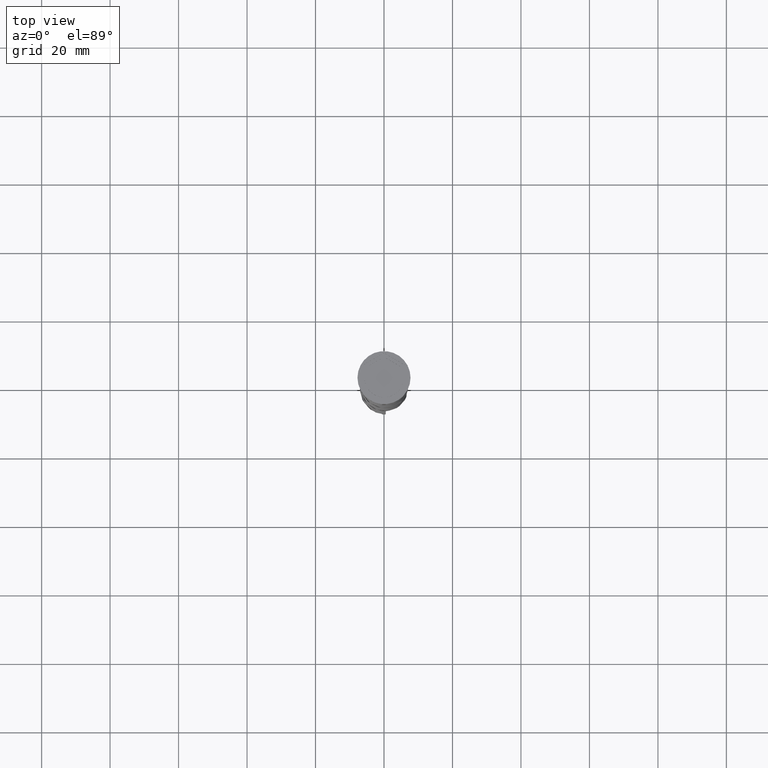
[diagram: clean part render]
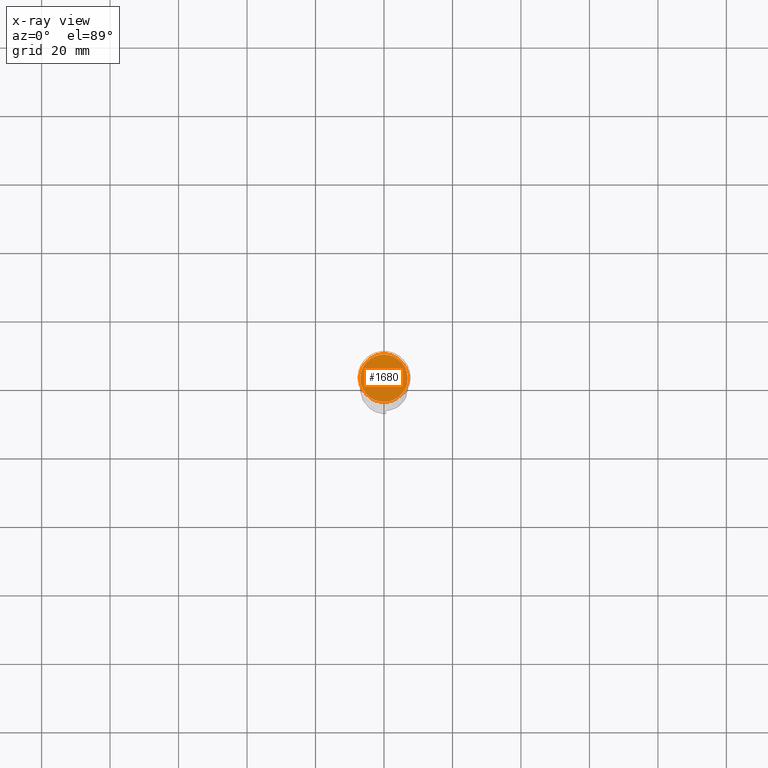
[diagram: x-ray — body ghosted, one internal face saturated and labeled with its STEP entity id]
A machine part, top view, then the same camera in x-ray: the body is ghosted and one INTERNAL B-rep face — a face not visible from any outside direction — is saturated and labeled: STEP entity #1680.
In plain terms, the highlighted planar face has unit normal (0, 0, -1).
Its self-contained STEP definition (entity closure, byte-faithful):
#10 = ORIENTED_EDGE ( 'NONE', *, *, #1420, .T. ) ;
#754 = EDGE_CURVE ( 'NONE', #2577, #2635, #2157, .T. ) ;
#1225 = CIRCLE ( 'NONE', #3389, 6.950000000000001066 ) ;
#1248 = CARTESIAN_POINT ( 'NONE',  ( 6.950000000000001066, 8.694992273946209718E-16, -10.50000000000000178 ) ) ;
#1263 = DIRECTION ( 'NONE',  ( -1.000000000000000000, 0.000000000000000000, 0.000000000000000000 ) ) ;
#1303 = CARTESIAN_POINT ( 'NONE',  ( -6.950000000000001066, 0.000000000000000000, -10.50000000000000178 ) ) ;
#1398 = AXIS2_PLACEMENT_3D ( 'NONE', #3314, #3122, #1263 ) ;
#1420 = EDGE_CURVE ( 'NONE', #2635, #2577, #1225, .T. ) ;
#1561 = DIRECTION ( 'NONE',  ( -0.000000000000000000, -0.000000000000000000, 1.000000000000000000 ) ) ;
#1672 = ORIENTED_EDGE ( 'NONE', *, *, #754, .T. ) ;
#1680 = ADVANCED_FACE ( 'NONE', ( #2857 ), #2012, .F. ) ;
#1716 = DIRECTION ( 'NONE',  ( -1.000000000000000000, 0.000000000000000000, -0.000000000000000000 ) ) ;
#1922 = CARTESIAN_POINT ( 'NONE',  ( 0.000000000000000000, 0.000000000000000000, -10.50000000000000178 ) ) ;
#2012 = PLANE ( 'NONE',  #3523 ) ;
#2157 = CIRCLE ( 'NONE', #1398, 6.950000000000001066 ) ;
#2577 = VERTEX_POINT ( 'NONE', #1248 ) ;
#2635 = VERTEX_POINT ( 'NONE', #1303 ) ;
#2801 = DIRECTION ( 'NONE',  ( -1.000000000000000000, 0.000000000000000000, 0.000000000000000000 ) ) ;
#2857 = FACE_OUTER_BOUND ( 'NONE', #3504, .T. ) ;
#2936 = DIRECTION ( 'NONE',  ( 0.000000000000000000, 0.000000000000000000, -1.000000000000000000 ) ) ;
#3122 = DIRECTION ( 'NONE',  ( -0.000000000000000000, -0.000000000000000000, 1.000000000000000000 ) ) ;
#3314 = CARTESIAN_POINT ( 'NONE',  ( 0.000000000000000000, 0.000000000000000000, -10.50000000000000178 ) ) ;
#3389 = AXIS2_PLACEMENT_3D ( 'NONE', #1922, #1561, #2801 ) ;
#3499 = CARTESIAN_POINT ( 'NONE',  ( 0.000000000000000000, 0.000000000000000000, -10.50000000000000178 ) ) ;
#3504 = EDGE_LOOP ( 'NONE', ( #10, #1672 ) ) ;
#3523 = AXIS2_PLACEMENT_3D ( 'NONE', #3499, #2936, #1716 ) ;